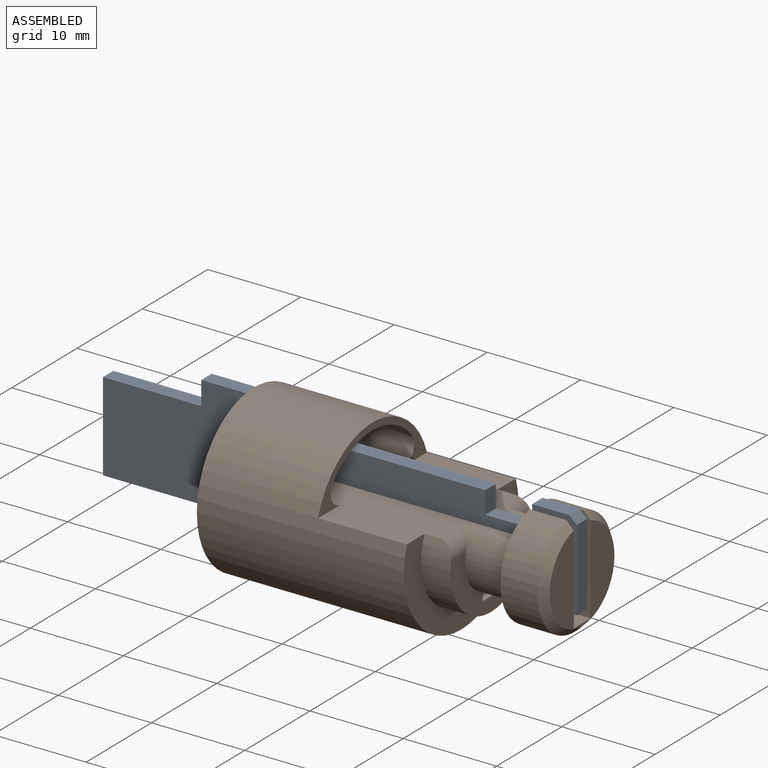
[diagram: assembled view]
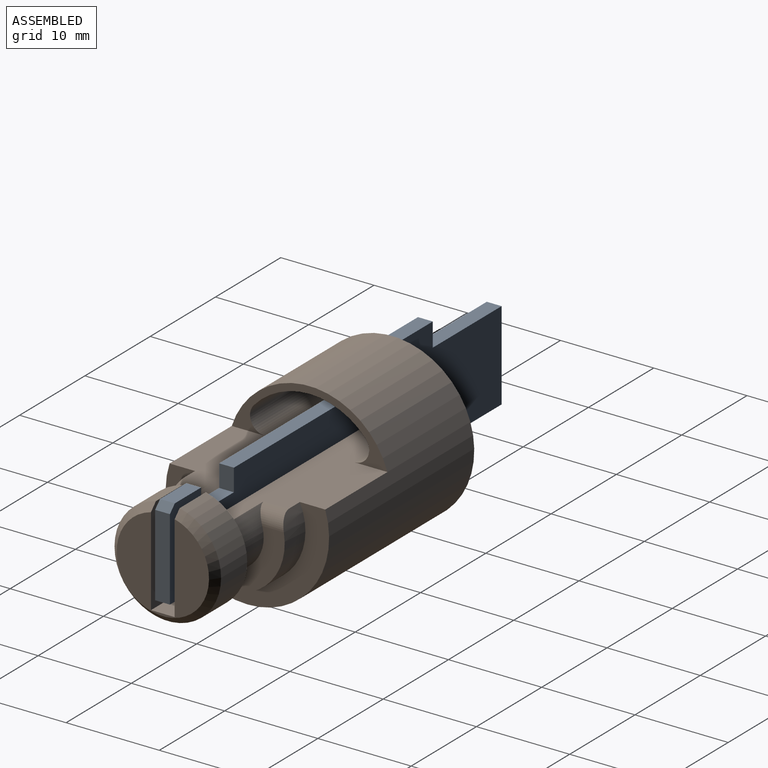
[diagram: assembled view, second angle]
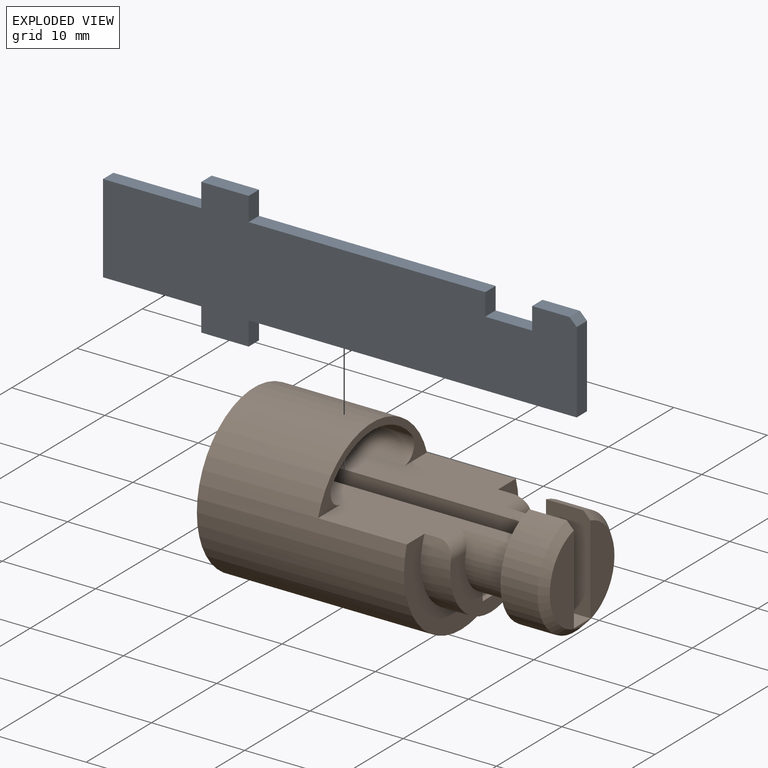
[diagram: exploded view]
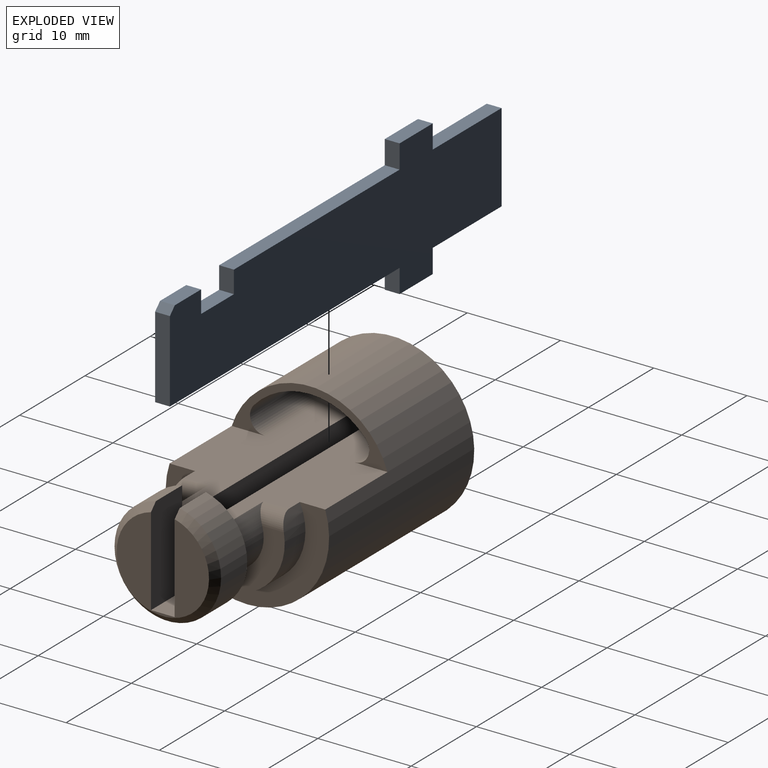
[diagram: exploded view, second angle]
ASSEMBLY  parts=2 mates=2
PART A: 19 faces, bbox 50.8x14.6x1.6 mm
  f0: plane 35.18x1.59mm, normal (0,1,0), area 55.8mm2, adj f3,f10,f11,f16
  f1: plane 25.37x1.59mm, normal (0,-1,0), area 40.3mm2, adj f7,f10,f11,f14
  f2: plane 4.01x1.59mm, normal (0,-1,0), area 6.4mm2, adj f9,f10,f11,f18
  f3: plane 8.76x1.59mm, normal (1,0,0), area 13.9mm2, adj f0,f10,f11,f18
  f4: plane 10.54x1.59mm, normal (0,1,0), area 16.7mm2, adj f5,f10,f11,f15
  f5: plane 9.53x1.59mm, normal (-1,0,0), area 15.1mm2, adj f4,f6,f10,f11
  f6: plane 10.54x1.59mm, normal (0,-1,0), area 16.7mm2, adj f5,f10,f11,f13
  f7: plane 2.38x1.59mm, normal (1,0,0), area 3.8mm2, adj f1,f8,f10,f11
  f8: plane 5.03x1.59mm, normal (0,-1,0), area 8mm2, adj f7,f9,f10,f11
  f9: plane 2.38x1.59mm, normal (-1,0,0), area 3.8mm2, adj f2,f8,f10,f11
  f10: plane 50.8x14.61mm, normal (0,0,1), area 497.4mm2, adj f0,f1,f2,f3,f4,f5,f6,f7
  f11: plane 50.8x14.61mm, normal (0,0,-1), area 497.4mm2, adj f0,f1,f2,f3,f4,f5,f6,f7
  f12: plane 5.08x1.59mm, normal (0,-1,0), area 8.1mm2, adj f10,f11,f13,f14
  f13: plane 2.54x1.59mm, normal (-1,0,0), area 4mm2, adj f6,f10,f11,f12
  f14: plane 2.54x1.59mm, normal (1,0,0), area 4mm2, adj f1,f10,f11,f12
  f15: plane 2.54x1.59mm, normal (-1,0,0), area 4mm2, adj f4,f10,f11,f17
  f16: plane 2.54x1.59mm, normal (1,0,0), area 4mm2, adj f0,f10,f11,f17
  f17: plane 5.08x1.59mm, normal (0,1,0), area 8.1mm2, adj f10,f11,f15,f16
  f18: plane 1.59x0.76mm, normal (0.71,-0.71,0), area 1.7mm2, adj f2,f3,f10,f11
PART B: 23 faces, bbox 35.2x17.5x17.5 mm
  f0: plane 17.53x17.53mm, normal (-1,0,0), area 167.8mm2, adj f6,f13,f14,f15,f16,f17,f20,f21
  f1: plane 16.69x6.1mm, normal (1,0,0), area 19.9mm2, adj f6,f16,f17,f20,f21,f22
  f2: cylinder r=6.22mm len=12.45mm, axis (1,0,0), area 78.4mm2, adj f4,f7,f16,f17,f18,f19
  f3: cylinder r=3.97mm len=6.6mm, axis (-1,0,0), area 40.1mm2, adj f4,f10,f13,f17,f19
  f4: plane 12.45x7.3mm, normal (1,0,0), area 39mm2, adj f2,f3,f5,f13,f14,f15,f18,f19
  f5: cylinder r=3.97mm len=6.6mm, axis (-1,0,0), area 40.1mm2, adj f4,f10,f15,f16,f18
  f6: cylinder r=8.76mm len=22.23mm, axis (-1,0,0), area 1013.1mm2, adj f0,f1,f7,f16,f17
  f7: plane 17.53x11.43mm, normal (1,0,0), area 73.7mm2, adj f2,f6,f16,f17
  f8: cylinder r=5.71mm len=11.43mm, axis (-1,0,0), area 133.4mm2, adj f10,f11,f13,f15
  f9: plane 9.91x9.74mm, normal (1,0,0), area 52.7mm2, adj f11,f12,f13,f15
  f10: plane 11.43x11.29mm, normal (-1,0,0), area 48.8mm2, adj f3,f5,f8,f12,f13,f15,f16,f17
  f11: cone r=4.95mm half-angle=45deg, axis (-1,0,0), area 33.3mm2, adj f8,f9,f13,f15
  f12: plane 4.76x2.54mm, normal (0,0,1), area 12.1mm2, adj f9,f10,f13,f15
  f13: plane 35.19x10.29mm, normal (0,-1,0), area 268.1mm2, adj f0,f3,f4,f8,f9,f10,f11,f12
  f14: plane 25.4x2.54mm, normal (0,0,1), area 64.5mm2, adj f0,f4,f13,f15
  f15: plane 35.19x10.29mm, normal (0,1,0), area 268.1mm2, adj f0,f4,f5,f8,f9,f10,f11,f12
  f16: plane 30.42x7.08mm, normal (0,0,1), area 130.2mm2, adj f0,f1,f2,f5,f6,f7,f10,f15
  f17: plane 30.42x7.08mm, normal (0,0,1), area 130.2mm2, adj f0,f1,f2,f3,f6,f7,f10,f13
  f18: cylinder r=1.59mm len=3.19mm, axis (0,-1,0), area 6.2mm2, adj f2,f4,f5,f16
  f19: cylinder r=1.59mm len=3.19mm, axis (0,-1,0), area 6.2mm2, adj f2,f3,f4,f17
  f20: cylinder r=8mm len=12.7mm, axis (1,0,0), area 171.8mm2, adj f0,f1,f21,f22
  f21: cylinder r=1.59mm len=12.7mm, axis (1,0,0), area 46.3mm2, adj f0,f1,f17,f20
  f22: cylinder r=1.59mm len=12.7mm, axis (1,0,0), area 46.3mm2, adj f0,f1,f16,f20
PLACE A rot(axis=(-1,0,0),90deg) t=(9.78,-0.83,1.13)mm
PLACE B t=(25.4,0,0)mm
MATE parallel B.f15 <-> A.f10  axis (0,1,0) through (18.17,-1.27,-0.7)mm
MATE planar B.f9 <-> A.f3  axis (1,0,0) through (35.18,0,-0.05)mm
